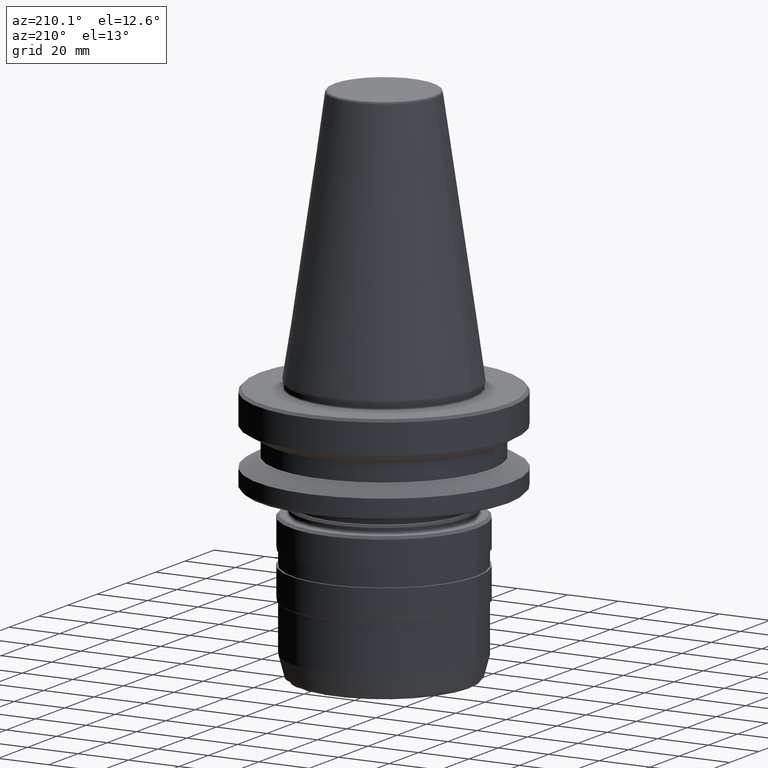
[diagram: clean part render]
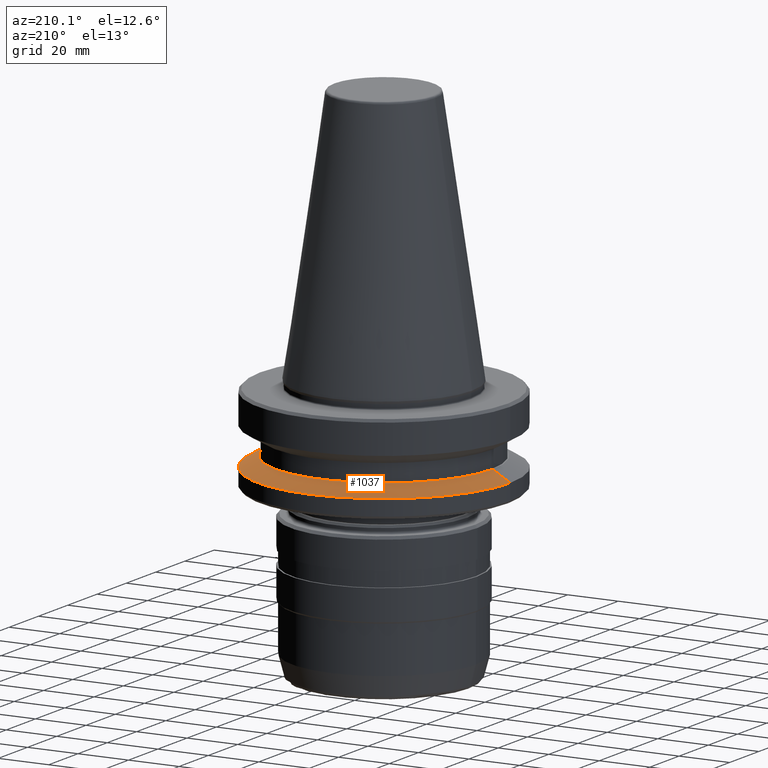
[diagram: same view with one face highlighted and labeled with its STEP entity id]
A machine part, auxiliary view. The second image highlights one B-rep face of the part: STEP entity #1037.
In plain terms, the highlighted conical surface has half-angle 60 deg.
Its self-contained STEP definition (entity closure, byte-faithful):
#80 = ORIENTED_EDGE ( 'NONE', *, *, #1510, .F. ) ;
#83 = CARTESIAN_POINT ( 'NONE',  ( 43.07217782648986300, 5.699027233244227100E-015, -26.70000000000082000 ) ) ;
#104 = VECTOR ( 'NONE', #1646, 1000.000000000000000 ) ;
#177 = ORIENTED_EDGE ( 'NONE', *, *, #1294, .T. ) ;
#197 = AXIS2_PLACEMENT_3D ( 'NONE', #1181, #397, #785 ) ;
#343 = VERTEX_POINT ( 'NONE', #531 ) ;
#370 = EDGE_CURVE ( 'NONE', #460, #1537, #527, .T. ) ;
#397 = DIRECTION ( 'NONE',  ( 0.0000000000000000000, 0.0000000000000000000, -1.000000000000000000 ) ) ;
#413 = CONICAL_SURFACE ( 'NONE', #197, 50.00000000000037700, 1.047197551196598500 ) ;
#443 = CARTESIAN_POINT ( 'NONE',  ( 0.0000000000000000000, 0.0000000000000000000, -30.69977999677496400 ) ) ;
#460 = VERTEX_POINT ( 'NONE', #83 ) ;
#527 = LINE ( 'NONE', #1106, #609 ) ;
#531 = CARTESIAN_POINT ( 'NONE',  ( -50.00000000000037700, 6.123233995736812600E-015, -30.69977999677496400 ) ) ;
#578 = AXIS2_PLACEMENT_3D ( 'NONE', #443, #1359, #581 ) ;
#581 = DIRECTION ( 'NONE',  ( 1.000000000000000000, 0.0000000000000000000, 0.0000000000000000000 ) ) ;
#609 = VECTOR ( 'NONE', #1221, 1000.000000000000000 ) ;
#624 = CARTESIAN_POINT ( 'NONE',  ( 0.0000000000000000000, 0.0000000000000000000, -26.70000000000082000 ) ) ;
#757 = DIRECTION ( 'NONE',  ( 1.000000000000000000, 0.0000000000000000000, 0.0000000000000000000 ) ) ;
#785 = DIRECTION ( 'NONE',  ( -1.000000000000000000, 0.0000000000000000000, 0.0000000000000000000 ) ) ;
#814 = LINE ( 'NONE', #1404, #104 ) ;
#847 = AXIS2_PLACEMENT_3D ( 'NONE', #624, #1525, #757 ) ;
#892 = CARTESIAN_POINT ( 'NONE',  ( 50.00000000000037700, 0.0000000000000000000, -30.69977999677496400 ) ) ;
#1037 = ADVANCED_FACE ( 'NONE', ( #1265 ), #413, .T. ) ;
#1095 = CARTESIAN_POINT ( 'NONE',  ( -43.07217782648986300, 0.0000000000000000000, -26.70000000000082000 ) ) ;
#1106 = CARTESIAN_POINT ( 'NONE',  ( 50.00000000000037700, 6.123233995736812600E-015, -30.69977999677496400 ) ) ;
#1123 = ORIENTED_EDGE ( 'NONE', *, *, #1505, .F. ) ;
#1181 = CARTESIAN_POINT ( 'NONE',  ( 0.0000000000000000000, 0.0000000000000000000, -30.69977999677496400 ) ) ;
#1214 = VERTEX_POINT ( 'NONE', #1095 ) ;
#1221 = DIRECTION ( 'NONE',  ( 0.8660254037844390400, 1.060575238724907400E-016, -0.4999999999999993300 ) ) ;
#1231 = CIRCLE ( 'NONE', #847, 43.07217782648986300 ) ;
#1265 = FACE_OUTER_BOUND ( 'NONE', #1305, .T. ) ;
#1278 = ORIENTED_EDGE ( 'NONE', *, *, #370, .T. ) ;
#1294 = EDGE_CURVE ( 'NONE', #1537, #343, #1469, .T. ) ;
#1305 = EDGE_LOOP ( 'NONE', ( #1123, #1278, #177, #80 ) ) ;
#1359 = DIRECTION ( 'NONE',  ( -0.0000000000000000000, -0.0000000000000000000, 1.000000000000000000 ) ) ;
#1404 = CARTESIAN_POINT ( 'NONE',  ( -50.00000000000037700, 0.0000000000000000000, -30.69977999677496400 ) ) ;
#1469 = CIRCLE ( 'NONE', #578, 50.00000000000037700 ) ;
#1505 = EDGE_CURVE ( 'NONE', #460, #1214, #1231, .T. ) ;
#1510 = EDGE_CURVE ( 'NONE', #1214, #343, #814, .T. ) ;
#1525 = DIRECTION ( 'NONE',  ( -0.0000000000000000000, -0.0000000000000000000, 1.000000000000000000 ) ) ;
#1537 = VERTEX_POINT ( 'NONE', #892 ) ;
#1646 = DIRECTION ( 'NONE',  ( -0.8660254037844390400, 0.0000000000000000000, -0.4999999999999993300 ) ) ;